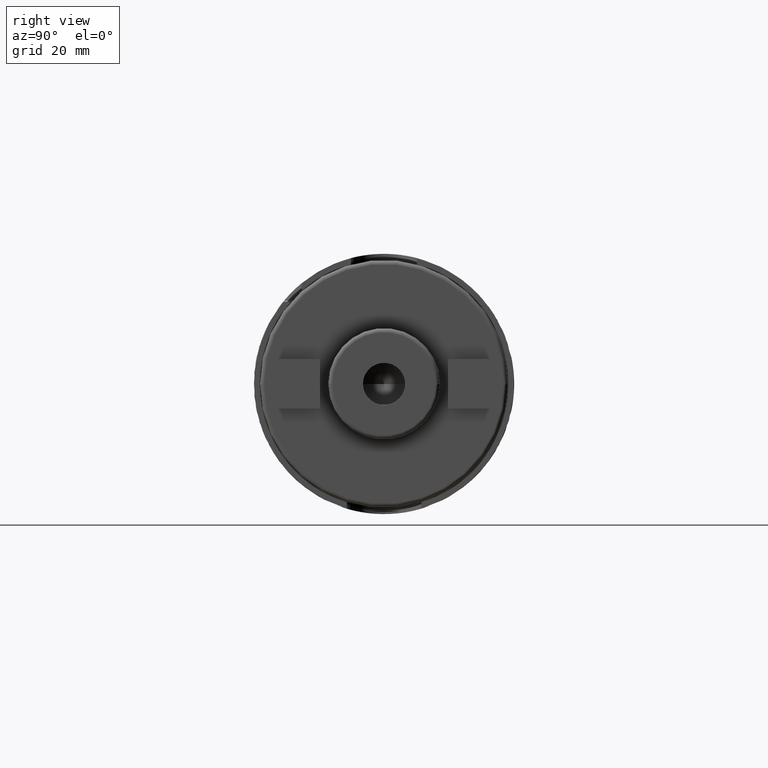
[diagram: clean part render]
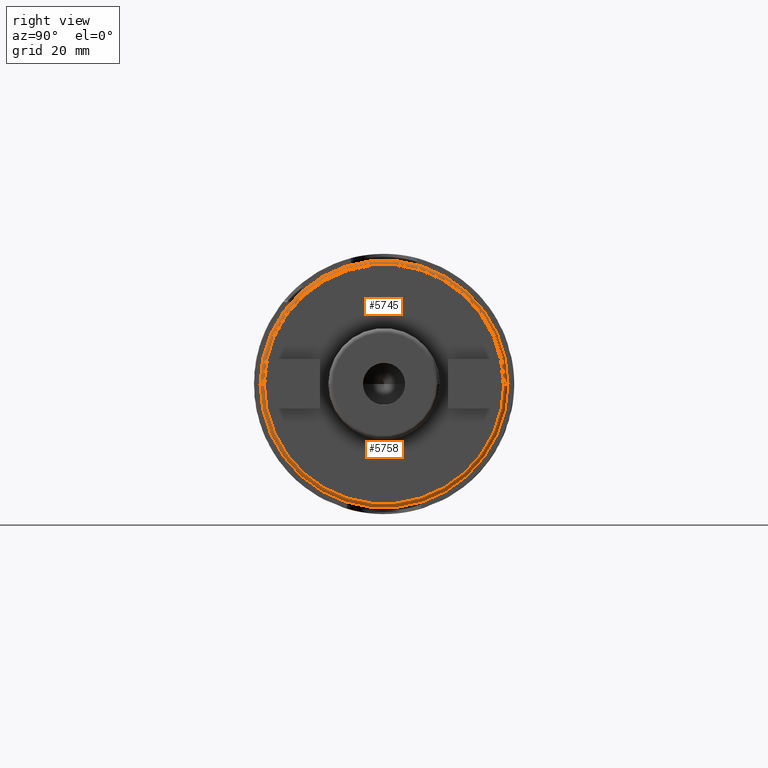
[diagram: same view with one multi-face feature highlighted, each face labeled with its STEP entity id]
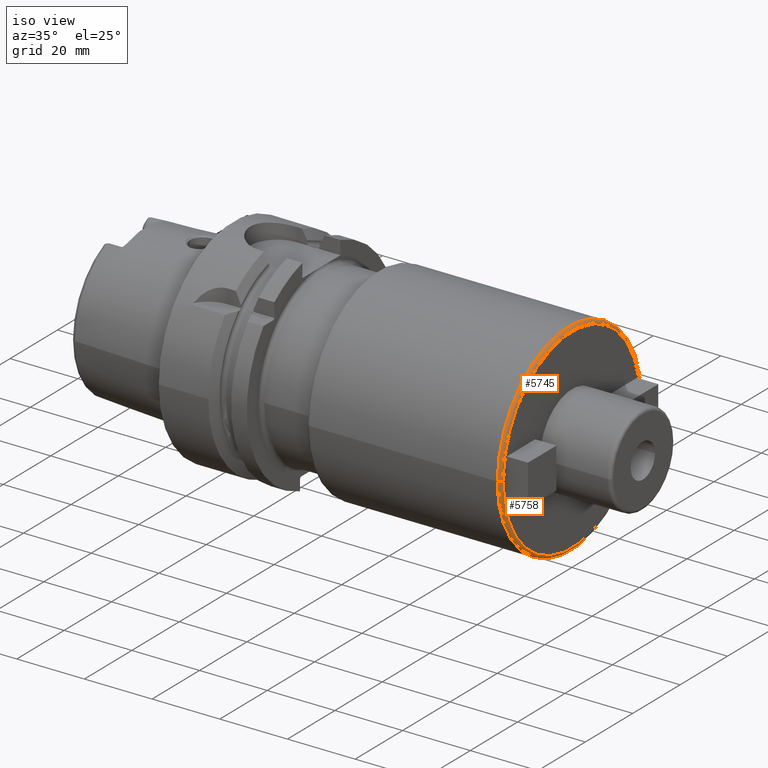
[diagram: same view with one multi-face feature highlighted, each face labeled with its STEP entity id]
A machine part, right view. The highlighted faces form ONE feature: a constant-radius fillet chain: 2 tangent blend faces with common blend radius 1 mm. The faces share edges in the B-rep.
A second angle (iso view) of the same feature is appended — it is thin or edge-on in the first view.
Their STEP definitions:
[1] entity #5745 (Torus):
#2133=CARTESIAN_POINT('',(9.9E1,0.E0,0.E0));
#2134=DIRECTION('',(-1.E0,0.E0,0.E0));
#2135=DIRECTION('',(0.E0,-1.E0,0.E0));
#2136=AXIS2_PLACEMENT_3D('',#2133,#2134,#2135);
#2143=CARTESIAN_POINT('',(9.9E1,-2.9E1,-2.230396423109E-12));
#2144=DIRECTION('',(0.E0,-7.691070003091E-14,1.E0));
#2145=DIRECTION('',(0.E0,-1.E0,-7.691070003091E-14));
#2146=AXIS2_PLACEMENT_3D('',#2143,#2144,#2145);
#2148=CARTESIAN_POINT('',(9.9E1,2.9E1,2.231548279497E-12));
#2149=DIRECTION('',(0.E0,7.695016498999E-14,-1.E0));
#2150=DIRECTION('',(0.E0,1.E0,7.695016498999E-14));
#2151=AXIS2_PLACEMENT_3D('',#2148,#2149,#2150);
#2168=CARTESIAN_POINT('',(1.E2,0.E0,0.E0));
#2169=DIRECTION('',(-1.E0,0.E0,0.E0));
#2170=DIRECTION('',(0.E0,-1.E0,0.E0));
#2171=AXIS2_PLACEMENT_3D('',#2168,#2169,#2170);
#3281=CARTESIAN_POINT('',(9.9E1,3.E1,0.E0));
#3282=CARTESIAN_POINT('',(9.9E1,-3.E1,0.E0));
#3283=VERTEX_POINT('',#3281);
#3284=VERTEX_POINT('',#3282);
#3285=CARTESIAN_POINT('',(1.E2,2.9E1,0.E0));
#3286=CARTESIAN_POINT('',(1.E2,-2.9E1,0.E0));
#3287=VERTEX_POINT('',#3285);
#3288=VERTEX_POINT('',#3286);
#5731=CARTESIAN_POINT('',(9.9E1,0.E0,0.E0));
#5732=DIRECTION('',(1.E0,0.E0,0.E0));
#5733=DIRECTION('',(0.E0,-9.999969638607E-1,-2.464197506115E-3));
#5734=AXIS2_PLACEMENT_3D('',#5731,#5732,#5733);
#5735=TOROIDAL_SURFACE('',#5734,2.9E1,1.E0);
#5736=ORIENTED_EDGE('',*,*,#5713,.T.);
#5738=ORIENTED_EDGE('',*,*,#5737,.T.);
#5740=ORIENTED_EDGE('',*,*,#5739,.F.);
#5742=ORIENTED_EDGE('',*,*,#5741,.F.);
#5743=EDGE_LOOP('',(#5736,#5738,#5740,#5742));
#5744=FACE_OUTER_BOUND('',#5743,.F.);
#5745=ADVANCED_FACE('',(#5744),#5735,.T.);
#2137=CIRCLE('',#2136,3.E1);
#2147=CIRCLE('',#2146,1.E0);
#2152=CIRCLE('',#2151,1.E0);
#2172=CIRCLE('',#2171,2.9E1);
#5713=EDGE_CURVE('',#3284,#3283,#2137,.T.);
#5737=EDGE_CURVE('',#3283,#3287,#2152,.T.);
#5739=EDGE_CURVE('',#3288,#3287,#2172,.T.);
#5741=EDGE_CURVE('',#3284,#3288,#2147,.T.);
[2] entity #5758 (Torus):
#2119=CARTESIAN_POINT('',(9.9E1,0.E0,0.E0));
#2120=DIRECTION('',(-1.E0,0.E0,0.E0));
#2121=DIRECTION('',(0.E0,1.E0,0.E0));
#2122=AXIS2_PLACEMENT_3D('',#2119,#2120,#2121);
#2143=CARTESIAN_POINT('',(9.9E1,-2.9E1,-2.230396423109E-12));
#2144=DIRECTION('',(0.E0,-7.691070003091E-14,1.E0));
#2145=DIRECTION('',(0.E0,-1.E0,-7.691070003091E-14));
#2146=AXIS2_PLACEMENT_3D('',#2143,#2144,#2145);
#2148=CARTESIAN_POINT('',(9.9E1,2.9E1,2.231548279497E-12));
#2149=DIRECTION('',(0.E0,7.695016498999E-14,-1.E0));
#2150=DIRECTION('',(0.E0,1.E0,7.695016498999E-14));
#2151=AXIS2_PLACEMENT_3D('',#2148,#2149,#2150);
#2163=CARTESIAN_POINT('',(1.E2,0.E0,0.E0));
#2164=DIRECTION('',(-1.E0,0.E0,0.E0));
#2165=DIRECTION('',(0.E0,1.E0,0.E0));
#2166=AXIS2_PLACEMENT_3D('',#2163,#2164,#2165);
#3281=CARTESIAN_POINT('',(9.9E1,3.E1,0.E0));
#3282=CARTESIAN_POINT('',(9.9E1,-3.E1,0.E0));
#3283=VERTEX_POINT('',#3281);
#3284=VERTEX_POINT('',#3282);
#3285=CARTESIAN_POINT('',(1.E2,2.9E1,0.E0));
#3286=CARTESIAN_POINT('',(1.E2,-2.9E1,0.E0));
#3287=VERTEX_POINT('',#3285);
#3288=VERTEX_POINT('',#3286);
#5746=CARTESIAN_POINT('',(9.9E1,0.E0,0.E0));
#5747=DIRECTION('',(1.E0,0.E0,0.E0));
#5748=DIRECTION('',(0.E0,9.999969638607E-1,2.464197506115E-3));
#5749=AXIS2_PLACEMENT_3D('',#5746,#5747,#5748);
#5750=TOROIDAL_SURFACE('',#5749,2.9E1,1.E0);
#5751=ORIENTED_EDGE('',*,*,#5698,.T.);
#5752=ORIENTED_EDGE('',*,*,#5741,.T.);
#5754=ORIENTED_EDGE('',*,*,#5753,.F.);
#5755=ORIENTED_EDGE('',*,*,#5737,.F.);
#5756=EDGE_LOOP('',(#5751,#5752,#5754,#5755));
#5757=FACE_OUTER_BOUND('',#5756,.F.);
#5758=ADVANCED_FACE('',(#5757),#5750,.T.);
#2123=CIRCLE('',#2122,3.E1);
#2147=CIRCLE('',#2146,1.E0);
#2152=CIRCLE('',#2151,1.E0);
#2167=CIRCLE('',#2166,2.9E1);
#5698=EDGE_CURVE('',#3283,#3284,#2123,.T.);
#5737=EDGE_CURVE('',#3283,#3287,#2152,.T.);
#5741=EDGE_CURVE('',#3284,#3288,#2147,.T.);
#5753=EDGE_CURVE('',#3287,#3288,#2167,.T.);